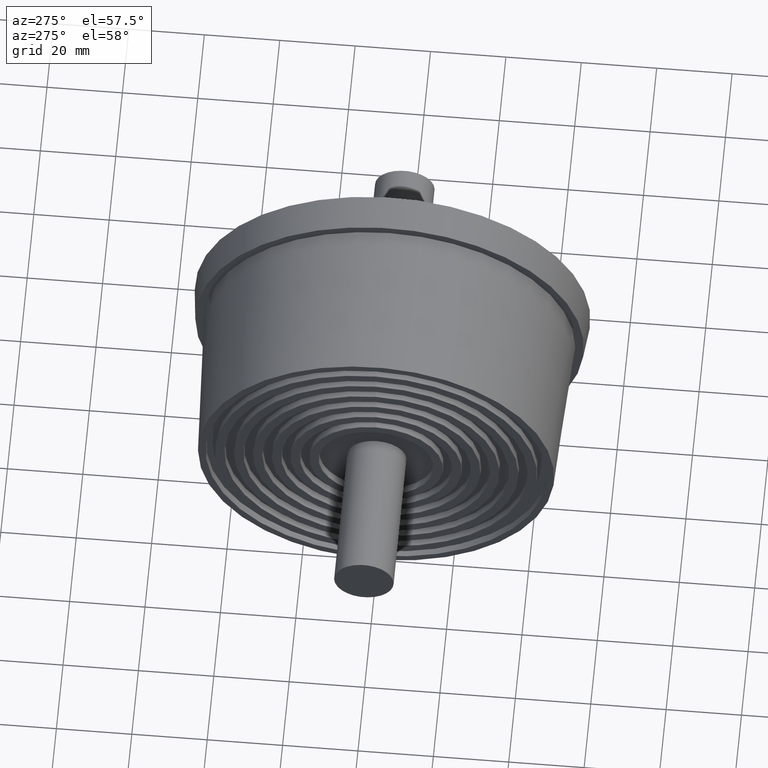
[diagram: clean part render]
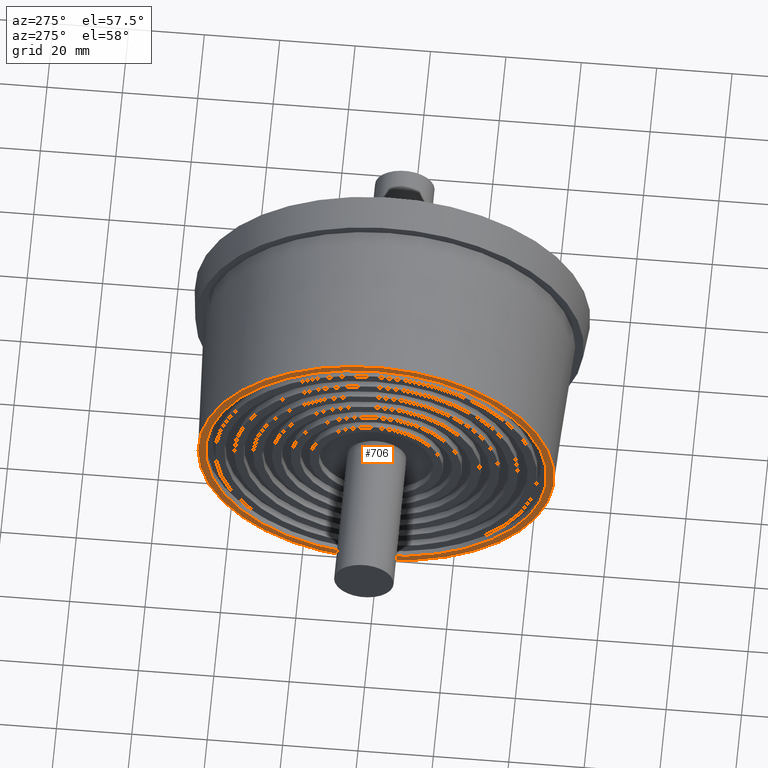
[diagram: same view with one face highlighted and labeled with its STEP entity id]
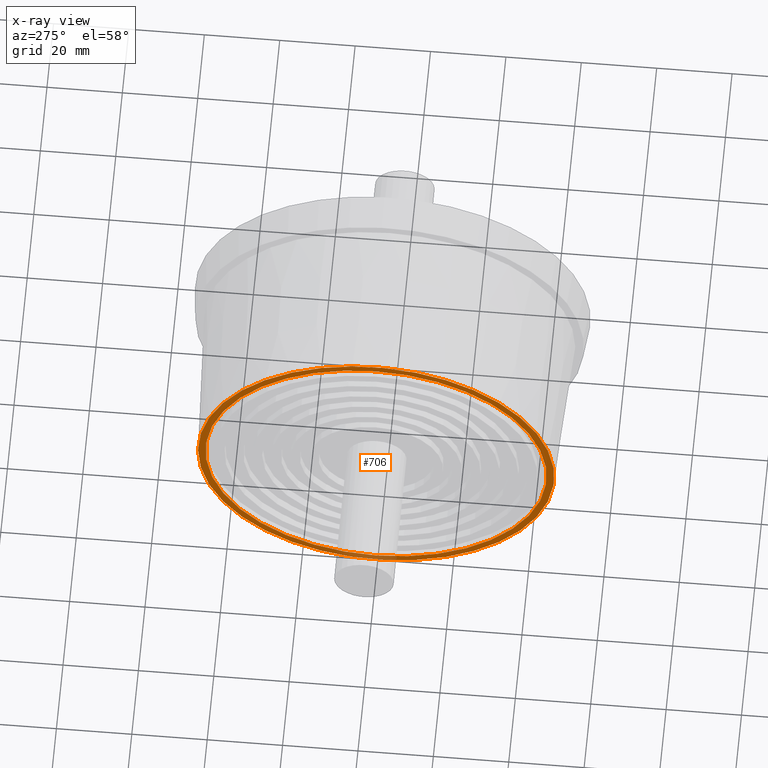
[diagram: x-ray of the same camera — body ghosted, the highlighted face saturated]
A machine part, auxiliary view. The second image highlights one B-rep face of the part: STEP entity #706.
The next image is the same camera in x-ray: the body ghosted, the highlighted face saturated — about 6% of this face is hidden behind the body in this view.
In plain terms, the highlighted planar face has unit normal (-1, -0, 0).
Its self-contained STEP definition (entity closure, byte-faithful):
#39=PLANE('',#832);
#100=FACE_BOUND('',#279,.T.);
#163=FACE_OUTER_BOUND('',#278,.T.);
#278=EDGE_LOOP('',(#598));
#279=EDGE_LOOP('',(#599));
#364=CIRCLE('',#830,45.25);
#365=CIRCLE('',#833,47.25);
#428=VERTEX_POINT('',#1278);
#429=VERTEX_POINT('',#1282);
#492=EDGE_CURVE('',#428,#428,#364,.T.);
#493=EDGE_CURVE('',#429,#429,#365,.T.);
#598=ORIENTED_EDGE('',*,*,#493,.F.);
#599=ORIENTED_EDGE('',*,*,#492,.T.);
#706=ADVANCED_FACE('',(#163,#100),#39,.T.);
#830=AXIS2_PLACEMENT_3D('',#1279,#1068,#1069);
#832=AXIS2_PLACEMENT_3D('',#1281,#1072,#1073);
#833=AXIS2_PLACEMENT_3D('',#1283,#1074,#1075);
#1068=DIRECTION('center_axis',(1.,2.40506373542991E-32,0.));
#1069=DIRECTION('ref_axis',(0.,0.,-1.));
#1072=DIRECTION('center_axis',(-1.,-2.40506373542991E-32,0.));
#1073=DIRECTION('ref_axis',(0.,0.,1.));
#1074=DIRECTION('center_axis',(1.,2.40506373542991E-32,0.));
#1075=DIRECTION('ref_axis',(0.,0.,-1.));
#1278=CARTESIAN_POINT('',(-25.,5.54152676614177E-15,45.25));
#1279=CARTESIAN_POINT('Origin',(-25.,-1.06806285390611E-46,0.));
#1281=CARTESIAN_POINT('Origin',(-25.,47.25,0.));
#1282=CARTESIAN_POINT('',(-25.,47.25,0.));
#1283=CARTESIAN_POINT('Origin',(-25.,-2.18952885050753E-46,0.));